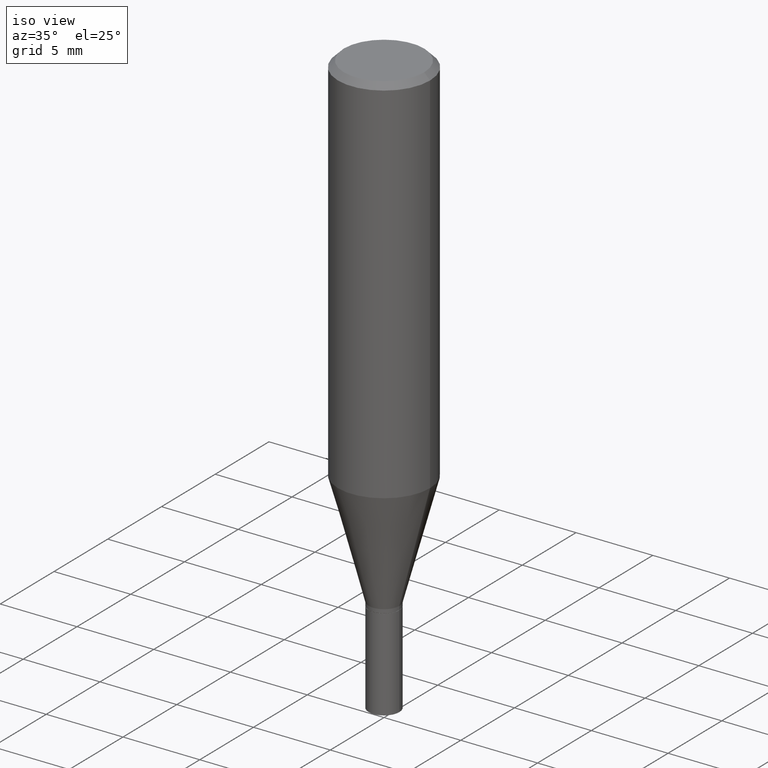
[diagram: clean part render]
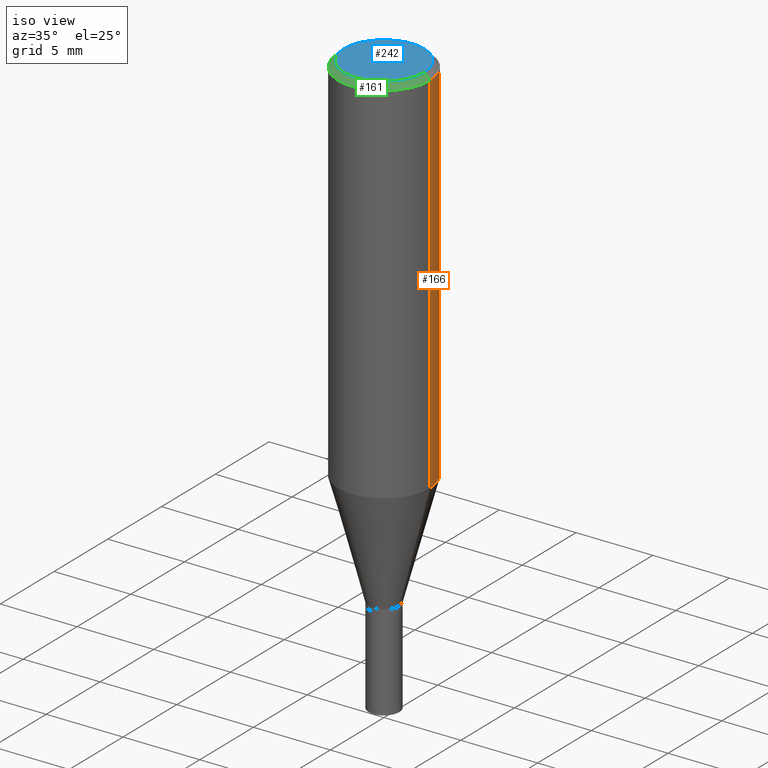
[diagram: same view with three faces highlighted in distinct colors, each labeled with its STEP entity id]
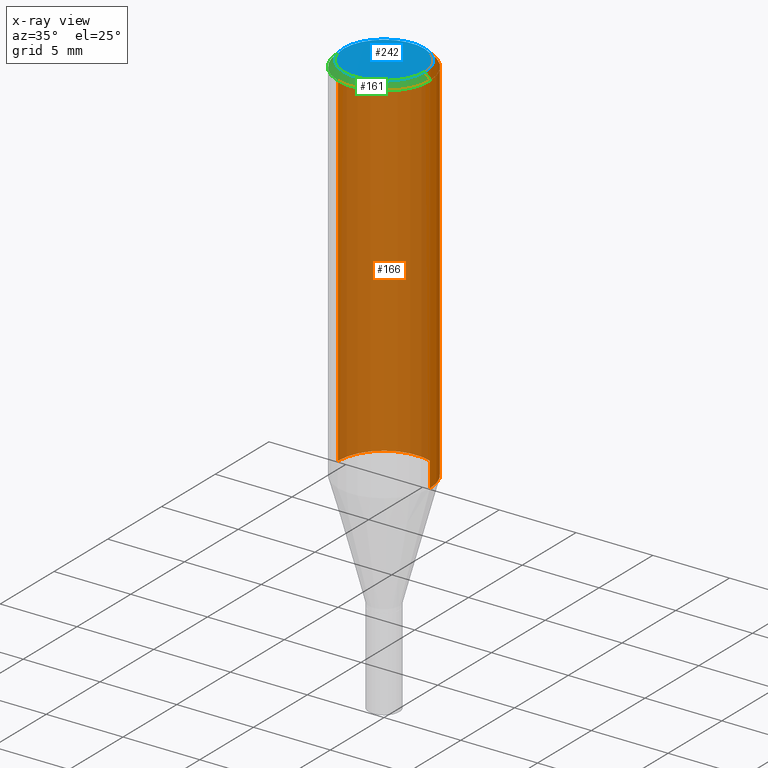
[diagram: x-ray of the same camera — body ghosted, the three highlighted faces saturated]
A machine part, iso view with three faces highlighted in distinct colors.
The next image is the same camera in x-ray (body ghosted, the three faces saturated) — at least one of them is partly hidden behind the body in this view.
Their STEP definitions:

[orange] entity #166 — the highlighted cylindrical surface (partial cylindrical patch) has radius 2.9997 mm, axis along (-0, 0, 1).
#6 = CIRCLE ( 'NONE', #183, 0.1180999999999999966 ) ;
#15 = CYLINDRICAL_SURFACE ( 'NONE', #76, 0.1180999999999999966 ) ;
#19 = CARTESIAN_POINT ( 'NONE',  ( 3.668203209277705088E-31, -5.237222008264718399E-17, -0.01499999999999999944 ) ) ;
#23 = DIRECTION ( 'NONE',  ( 1.000000000000000000, -6.982962677686269077E-15, 0.000000000000000000 ) ) ;
#70 = DIRECTION ( 'NONE',  ( -2.445468806185136877E-29, 3.491481338843145188E-15, 1.000000000000000000 ) ) ;
#76 = AXIS2_PLACEMENT_3D ( 'NONE', #294, #446, #463 ) ;
#84 = EDGE_CURVE ( 'NONE', #268, #309, #221, .T. ) ;
#92 = DIRECTION ( 'NONE',  ( -2.445468806185136597E-29, 3.491481338843145583E-15, 1.000000000000000000 ) ) ;
#105 = CARTESIAN_POINT ( 'NONE',  ( -0.1180999999999999966, 8.391509709326782957E-16, -5.809262341591043784E-30 ) ) ;
#108 = ORIENTED_EDGE ( 'NONE', *, *, #179, .F. ) ;
#122 = VECTOR ( 'NONE', #70, 39.37007874015748143 ) ;
#132 = EDGE_CURVE ( 'NONE', #309, #373, #174, .T. ) ;
#134 = CARTESIAN_POINT ( 'NONE',  ( 0.1180999999999999966, -8.770601123173952432E-16, -0.01499999999999999944 ) ) ;
#155 = ORIENTED_EDGE ( 'NONE', *, *, #84, .T. ) ;
#166 = ADVANCED_FACE ( 'NONE', ( #436 ), #15, .T. ) ;
#174 = LINE ( 'NONE', #105, #252 ) ;
#179 = EDGE_CURVE ( 'NONE', #268, #204, #353, .T. ) ;
#183 = AXIS2_PLACEMENT_3D ( 'NONE', #19, #92, #374 ) ;
#204 = VERTEX_POINT ( 'NONE', #134 ) ;
#221 = CIRCLE ( 'NONE', #422, 0.1180999999999999966 ) ;
#235 = CARTESIAN_POINT ( 'NONE',  ( 2.347407949845566514E-29, -3.351476424810041143E-15, -0.9599009989039514190 ) ) ;
#248 = CARTESIAN_POINT ( 'NONE',  ( 0.1180999999999999966, -8.246878922347480654E-16, 5.758764772215000440E-30 ) ) ;
#252 = VECTOR ( 'NONE', #321, 39.37007874015748143 ) ;
#260 = ORIENTED_EDGE ( 'NONE', *, *, #325, .F. ) ;
#268 = VERTEX_POINT ( 'NONE', #378 ) ;
#270 = ORIENTED_EDGE ( 'NONE', *, *, #132, .T. ) ;
#292 = EDGE_LOOP ( 'NONE', ( #155, #270, #260, #108 ) ) ;
#294 = CARTESIAN_POINT ( 'NONE',  ( 0.000000000000000000, 0.000000000000000000, 0.000000000000000000 ) ) ;
#309 = VERTEX_POINT ( 'NONE', #415 ) ;
#321 = DIRECTION ( 'NONE',  ( -2.445468806185136877E-29, 3.491481338843145188E-15, 1.000000000000000000 ) ) ;
#325 = EDGE_CURVE ( 'NONE', #204, #373, #6, .T. ) ;
#353 = LINE ( 'NONE', #248, #122 ) ;
#369 = CARTESIAN_POINT ( 'NONE',  ( -0.1180999999999999966, -8.627733515136660128E-16, -0.01499999999999999944 ) ) ;
#373 = VERTEX_POINT ( 'NONE', #369 ) ;
#374 = DIRECTION ( 'NONE',  ( 1.000000000000000000, -6.982962677686266711E-15, 0.000000000000000000 ) ) ;
#378 = CARTESIAN_POINT ( 'NONE',  ( 0.1181000000000000105, -4.176164317044788617E-15, -0.9599009989039514190 ) ) ;
#412 = DIRECTION ( 'NONE',  ( -2.445468806185136597E-29, 3.491481338843145583E-15, 1.000000000000000000 ) ) ;
#415 = CARTESIAN_POINT ( 'NONE',  ( -0.1181000000000000105, -2.512325453877362157E-15, -0.9599009989039514190 ) ) ;
#422 = AXIS2_PLACEMENT_3D ( 'NONE', #235, #412, #23 ) ;
#436 = FACE_OUTER_BOUND ( 'NONE', #292, .T. ) ;
#446 = DIRECTION ( 'NONE',  ( -2.445468806185136597E-29, 3.491481338843145583E-15, 1.000000000000000000 ) ) ;
#463 = DIRECTION ( 'NONE',  ( 1.000000000000000000, -6.982962677686266711E-15, 4.876176775795936353E-29 ) ) ;

[blue] entity #242 — the highlighted planar face has unit normal (0, -0, -1).
#14 = DIRECTION ( 'NONE',  ( 1.000000000000000000, -6.982962677686265922E-15, 4.824495916043694704E-29 ) ) ;
#25 = EDGE_CURVE ( 'NONE', #437, #236, #387, .T. ) ;
#27 = DIRECTION ( 'NONE',  ( -1.000000000000000000, 6.982962677686265922E-15, -4.876176775795935793E-29 ) ) ;
#63 = DIRECTION ( 'NONE',  ( -2.445468806185136597E-29, 3.491481338843145583E-15, 1.000000000000000000 ) ) ;
#90 = PLANE ( 'NONE',  #452 ) ;
#93 = AXIS2_PLACEMENT_3D ( 'NONE', #163, #191, #262 ) ;
#120 = FACE_OUTER_BOUND ( 'NONE', #343, .T. ) ;
#163 = CARTESIAN_POINT ( 'NONE',  ( -2.356111900284270779E-44, 3.363903359250623461E-30, 9.634602143871708828E-16 ) ) ;
#191 = DIRECTION ( 'NONE',  ( -2.445468806185136597E-29, 3.491481338843145583E-15, 1.000000000000000000 ) ) ;
#202 = CARTESIAN_POINT ( 'NONE',  ( -2.356111900284270779E-44, 3.363903359250623461E-30, 9.634602143871708828E-16 ) ) ;
#216 = EDGE_CURVE ( 'NONE', #236, #437, #293, .T. ) ;
#230 = CARTESIAN_POINT ( 'NONE',  ( 7.199434520694541042E-16, 0.1031000000000000111, 1.217583811588571567E-16 ) ) ;
#236 = VERTEX_POINT ( 'NONE', #421 ) ;
#237 = CARTESIAN_POINT ( 'NONE',  ( 0.1031000000000000111, -7.849571885948532984E-16, 9.634602143871762076E-16 ) ) ;
#242 = ADVANCED_FACE ( 'NONE', ( #120 ), #90, .F. ) ;
#257 = ORIENTED_EDGE ( 'NONE', *, *, #25, .T. ) ;
#262 = DIRECTION ( 'NONE',  ( 1.000000000000000000, -6.982962677686265922E-15, 4.824495916043694704E-29 ) ) ;
#293 = CIRCLE ( 'NONE', #93, 0.1031000000000000111 ) ;
#333 = ORIENTED_EDGE ( 'NONE', *, *, #216, .T. ) ;
#343 = EDGE_LOOP ( 'NONE', ( #333, #257 ) ) ;
#387 = CIRCLE ( 'NONE', #464, 0.1031000000000000111 ) ;
#421 = CARTESIAN_POINT ( 'NONE',  ( -0.1031000000000000111, 7.461295621107793201E-16, 9.634602143871657552E-16 ) ) ;
#437 = VERTEX_POINT ( 'NONE', #237 ) ;
#452 = AXIS2_PLACEMENT_3D ( 'NONE', #230, #455, #27 ) ;
#455 = DIRECTION ( 'NONE',  ( 2.438088387897960049E-29, -3.491481338843145188E-15, -1.000000000000000000 ) ) ;
#464 = AXIS2_PLACEMENT_3D ( 'NONE', #202, #63, #14 ) ;

[green] entity #161 — the highlighted conical surface has half-angle 45 deg.
#5 = CARTESIAN_POINT ( 'NONE',  ( -0.1180999999999999966, 7.723156721521009862E-16, -0.01499999999999999944 ) ) ;
#17 = LINE ( 'NONE', #154, #358 ) ;
#48 = FACE_OUTER_BOUND ( 'NONE', #407, .T. ) ;
#57 = VECTOR ( 'NONE', #398, 39.37007874015748143 ) ;
#58 = DIRECTION ( 'NONE',  ( 1.000000000000000000, -6.982962677686266711E-15, 0.000000000000000000 ) ) ;
#67 = DIRECTION ( 'NONE',  ( -1.000000000000000000, 6.982962677686266711E-15, 0.000000000000000000 ) ) ;
#87 = AXIS2_PLACEMENT_3D ( 'NONE', #243, #187, #67 ) ;
#93 = AXIS2_PLACEMENT_3D ( 'NONE', #163, #191, #262 ) ;
#116 = ORIENTED_EDGE ( 'NONE', *, *, #345, .T. ) ;
#121 = CARTESIAN_POINT ( 'NONE',  ( 3.668203209277705088E-31, -5.237222008264718399E-17, -0.01499999999999999944 ) ) ;
#134 = CARTESIAN_POINT ( 'NONE',  ( 0.1180999999999999966, -8.770601123173952432E-16, -0.01499999999999999944 ) ) ;
#154 = CARTESIAN_POINT ( 'NONE',  ( 0.1180999999999999966, -8.625970336194650129E-16, -0.01499999999999999944 ) ) ;
#161 = ADVANCED_FACE ( 'NONE', ( #48 ), #435, .T. ) ;
#163 = CARTESIAN_POINT ( 'NONE',  ( -2.356111900284270779E-44, 3.363903359250623461E-30, 9.634602143871708828E-16 ) ) ;
#171 = EDGE_CURVE ( 'NONE', #236, #373, #209, .T. ) ;
#187 = DIRECTION ( 'NONE',  ( 2.445468806185136597E-29, -3.491481338843145583E-15, -1.000000000000000000 ) ) ;
#191 = DIRECTION ( 'NONE',  ( -2.445468806185136597E-29, 3.491481338843145583E-15, 1.000000000000000000 ) ) ;
#197 = ORIENTED_EDGE ( 'NONE', *, *, #171, .T. ) ;
#204 = VERTEX_POINT ( 'NONE', #134 ) ;
#209 = LINE ( 'NONE', #5, #57 ) ;
#216 = EDGE_CURVE ( 'NONE', #236, #437, #293, .T. ) ;
#236 = VERTEX_POINT ( 'NONE', #421 ) ;
#237 = CARTESIAN_POINT ( 'NONE',  ( 0.1031000000000000111, -7.849571885948532984E-16, 9.634602143871762076E-16 ) ) ;
#243 = CARTESIAN_POINT ( 'NONE',  ( 3.668203209277705088E-31, -5.237222008264718399E-17, -0.01499999999999999944 ) ) ;
#262 = DIRECTION ( 'NONE',  ( 1.000000000000000000, -6.982962677686265922E-15, 4.824495916043694704E-29 ) ) ;
#275 = CIRCLE ( 'NONE', #381, 0.1180999999999999966 ) ;
#291 = ORIENTED_EDGE ( 'NONE', *, *, #383, .F. ) ;
#293 = CIRCLE ( 'NONE', #93, 0.1031000000000000111 ) ;
#298 = DIRECTION ( 'NONE',  ( 0.7071067811865247021, -7.319954787623178737E-15, -0.7071067811865703323 ) ) ;
#305 = ORIENTED_EDGE ( 'NONE', *, *, #216, .F. ) ;
#345 = EDGE_CURVE ( 'NONE', #373, #204, #275, .T. ) ;
#358 = VECTOR ( 'NONE', #298, 39.37007874015748143 ) ;
#369 = CARTESIAN_POINT ( 'NONE',  ( -0.1180999999999999966, -8.627733515136660128E-16, -0.01499999999999999944 ) ) ;
#373 = VERTEX_POINT ( 'NONE', #369 ) ;
#381 = AXIS2_PLACEMENT_3D ( 'NONE', #121, #453, #58 ) ;
#383 = EDGE_CURVE ( 'NONE', #437, #204, #17, .T. ) ;
#398 = DIRECTION ( 'NONE',  ( -0.7071067811865247021, 2.468850131082017641E-15, -0.7071067811865703323 ) ) ;
#407 = EDGE_LOOP ( 'NONE', ( #291, #305, #197, #116 ) ) ;
#421 = CARTESIAN_POINT ( 'NONE',  ( -0.1031000000000000111, 7.461295621107793201E-16, 9.634602143871657552E-16 ) ) ;
#435 = CONICAL_SURFACE ( 'NONE', #87, 0.1180999999999999966, 0.7853981633974160825 ) ;
#437 = VERTEX_POINT ( 'NONE', #237 ) ;
#453 = DIRECTION ( 'NONE',  ( -2.445468806185136597E-29, 3.491481338843145583E-15, 1.000000000000000000 ) ) ;